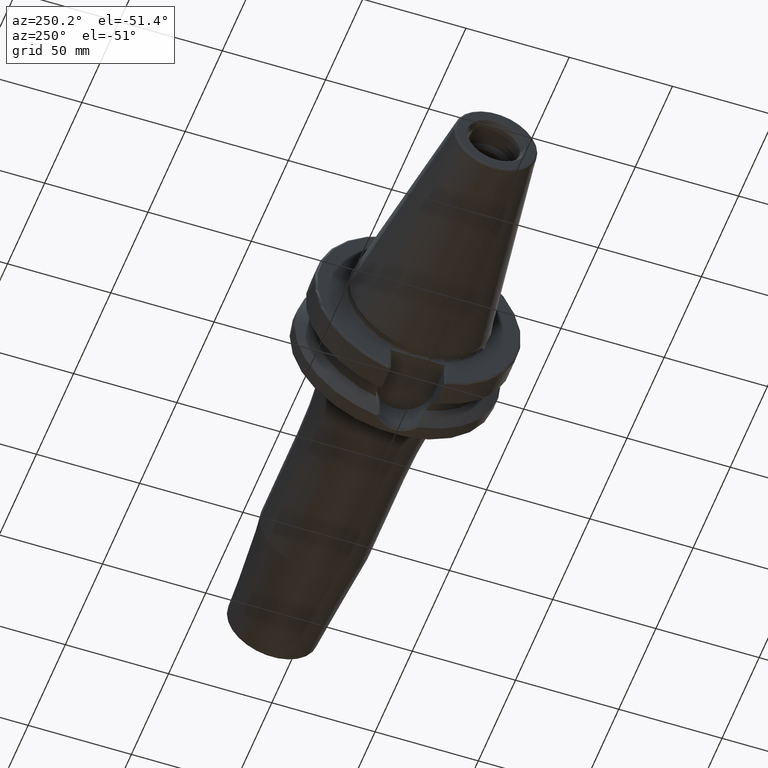
[diagram: clean part render]
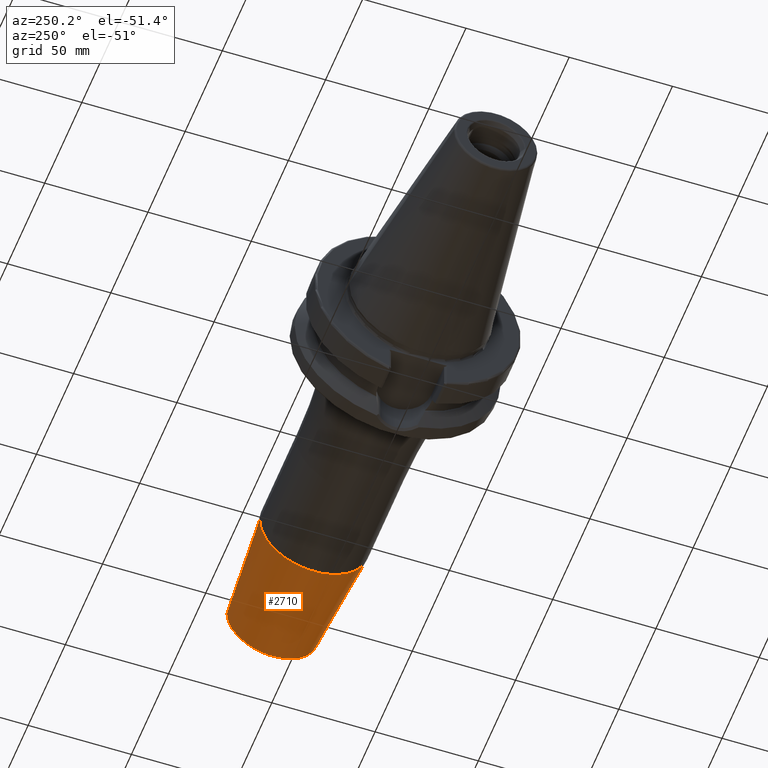
[diagram: same view with one face highlighted and labeled with its STEP entity id]
A machine part, auxiliary view. The second image highlights one B-rep face of the part: STEP entity #2710.
In plain terms, the highlighted conical surface has half-angle 4.5 deg.
Its self-contained STEP definition (entity closure, byte-faithful):
#883=CARTESIAN_POINT('',(1.428220786872E2,0.E0,0.E0));
#884=DIRECTION('',(-1.E0,0.E0,0.E0));
#885=DIRECTION('',(0.E0,1.E0,0.E0));
#886=AXIS2_PLACEMENT_3D('',#883,#884,#885);
#917=CARTESIAN_POINT('',(1.990784590957E2,0.E0,0.E0));
#918=DIRECTION('',(-1.E0,0.E0,0.E0));
#919=DIRECTION('',(0.E0,1.E0,0.E0));
#920=AXIS2_PLACEMENT_3D('',#917,#918,#919);
#922=DIRECTION('',(-9.969173337331E-1,7.845909572785E-2,1.946923240204E-14));
#923=VECTOR('',#922,5.643033630266E1);
#924=CARTESIAN_POINT('',(1.990784590957E2,2.207252684207E1,
-1.095410017984E-12));
#925=LINE('',#924,#923);
#926=DIRECTION('',(-9.969173337331E-1,-7.845909572785E-2,-1.954394654066E-14));
#927=VECTOR('',#926,5.643033630266E1);
#928=CARTESIAN_POINT('',(1.990784590957E2,-2.207252684207E1,
1.099626161953E-12));
#929=LINE('',#928,#927);
#1411=CARTESIAN_POINT('',(1.428220786872E2,2.65E1,0.E0));
#1412=CARTESIAN_POINT('',(1.428220786872E2,-2.65E1,0.E0));
#1413=VERTEX_POINT('',#1411);
#1414=VERTEX_POINT('',#1412);
#1423=CARTESIAN_POINT('',(1.990784590957E2,2.207252684207E1,0.E0));
#1424=CARTESIAN_POINT('',(1.990784590957E2,-2.207252684207E1,0.E0));
#1425=VERTEX_POINT('',#1423);
#1426=VERTEX_POINT('',#1424);
#2699=CARTESIAN_POINT('',(1.709502688915E2,0.E0,0.E0));
#2700=DIRECTION('',(-1.E0,0.E0,0.E0));
#2701=DIRECTION('',(0.E0,1.E0,0.E0));
#2702=AXIS2_PLACEMENT_3D('',#2699,#2700,#2701);
#2703=CONICAL_SURFACE('',#2702,2.428626342104E1,4.5E0);
#2704=ORIENTED_EDGE('',*,*,#2690,.F.);
#2705=ORIENTED_EDGE('',*,*,#2665,.T.);
#2706=ORIENTED_EDGE('',*,*,#2635,.T.);
#2707=ORIENTED_EDGE('',*,*,#2662,.F.);
#2708=EDGE_LOOP('',(#2704,#2705,#2706,#2707));
#2709=FACE_OUTER_BOUND('',#2708,.F.);
#2710=ADVANCED_FACE('',(#2709),#2703,.T.);
#887=CIRCLE('',#886,2.65E1);
#921=CIRCLE('',#920,2.207252684207E1);
#2635=EDGE_CURVE('',#1413,#1414,#887,.T.);
#2662=EDGE_CURVE('',#1426,#1414,#929,.T.);
#2665=EDGE_CURVE('',#1425,#1413,#925,.T.);
#2690=EDGE_CURVE('',#1425,#1426,#921,.T.);